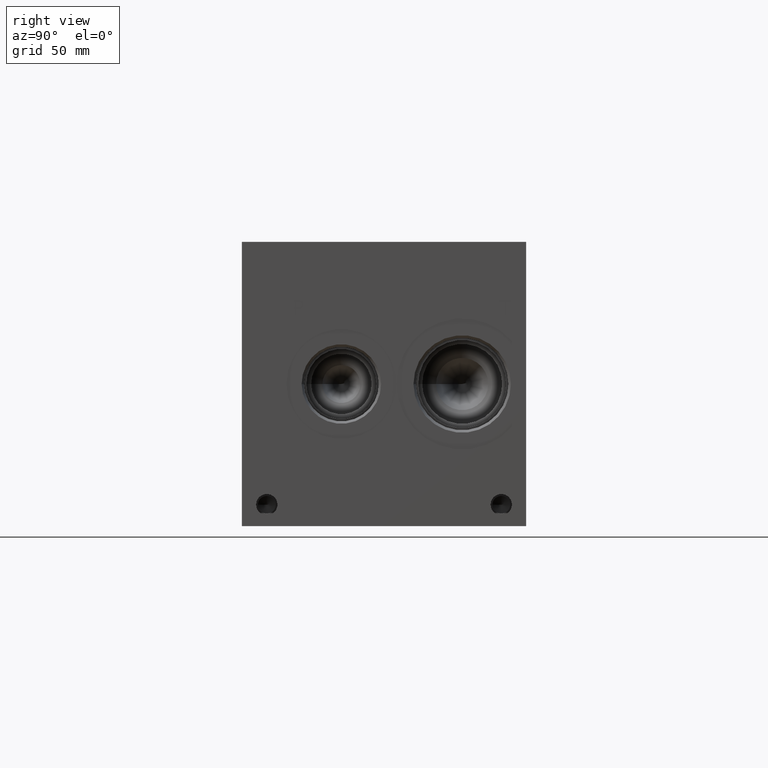
[diagram: clean part render]
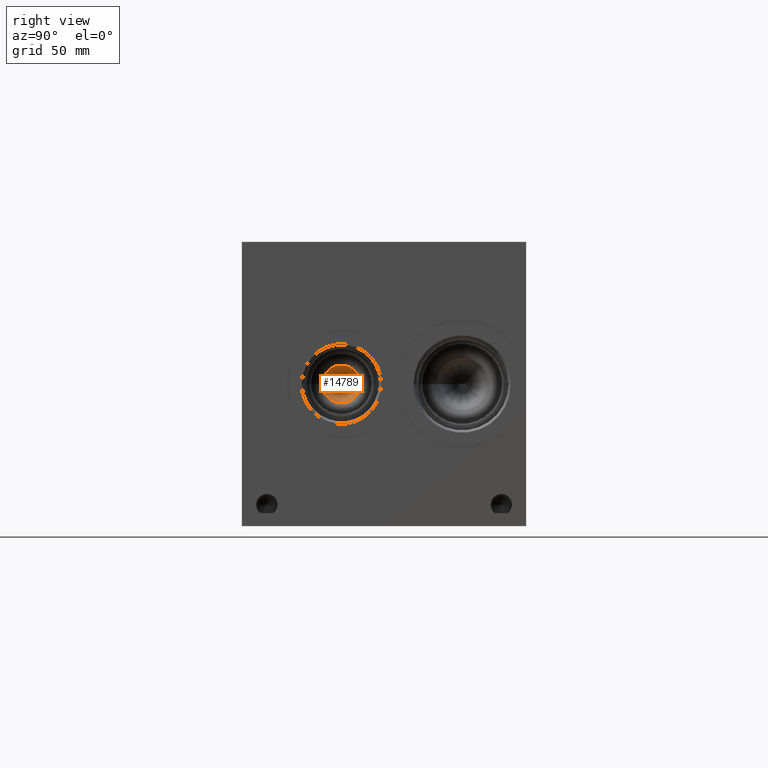
[diagram: same view with one face highlighted and labeled with its STEP entity id]
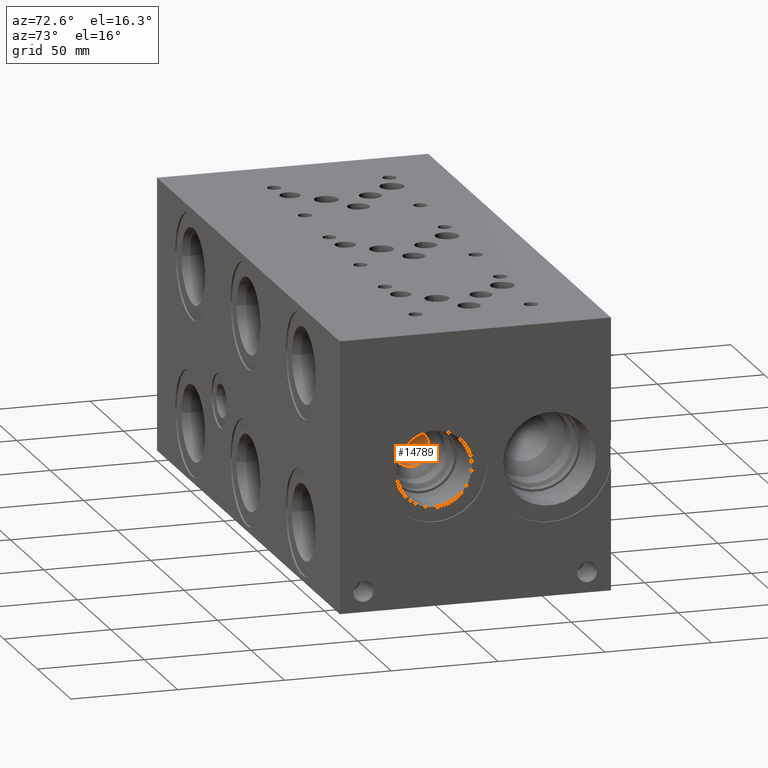
[diagram: same view with one face highlighted and labeled with its STEP entity id]
A machine part, right view. The second image highlights one B-rep face of the part: STEP entity #14789.
A second angle (auxiliary view) of the same face is appended — the face is thin or edge-on in the first view.
In plain terms, the highlighted conical surface has half-angle 15 deg.
Its self-contained STEP definition (entity closure, byte-faithful):
#131=CONICAL_SURFACE('',#15452,8.8773,0.261799387799149);
#252=CIRCLE('',#15428,8.46947359152587);
#1868=FACE_OUTER_BOUND('',#2717,.T.);
#2717=EDGE_LOOP('',(#12224,#12225,#12226));
#4126=LINE('',#24968,#5437);
#5437=VECTOR('',#17998,8.8773);
#6662=VERTEX_POINT('',#24919);
#6676=VERTEX_POINT('',#24967);
#8598=EDGE_CURVE('',#6662,#6662,#252,.T.);
#8621=EDGE_CURVE('',#6662,#6676,#4126,.T.);
#12224=ORIENTED_EDGE('',*,*,#8598,.T.);
#12225=ORIENTED_EDGE('',*,*,#8621,.T.);
#12226=ORIENTED_EDGE('',*,*,#8621,.F.);
#14789=ADVANCED_FACE('',(#1868),#131,.F.);
#15428=AXIS2_PLACEMENT_3D('',#24921,#17940,#17941);
#15452=AXIS2_PLACEMENT_3D('',#24966,#17996,#17997);
#17940=DIRECTION('center_axis',(1.,0.,0.));
#17941=DIRECTION('ref_axis',(0.,1.,0.));
#17996=DIRECTION('center_axis',(1.,0.,0.));
#17997=DIRECTION('ref_axis',(0.,1.,0.));
#17998=DIRECTION('',(-0.965925826289068,0.258819045102521,3.16961915143176E-17));
#24919=CARTESIAN_POINT('',(237.602506488875,35.9805264084741,63.5));
#24921=CARTESIAN_POINT('Origin',(237.602506488875,44.45,63.5));
#24966=CARTESIAN_POINT('Origin',(239.124535365969,44.45,63.5));
#24967=CARTESIAN_POINT('',(205.994000731938,44.45,63.5));
#24968=CARTESIAN_POINT('',(239.124535365969,35.5727,63.5));